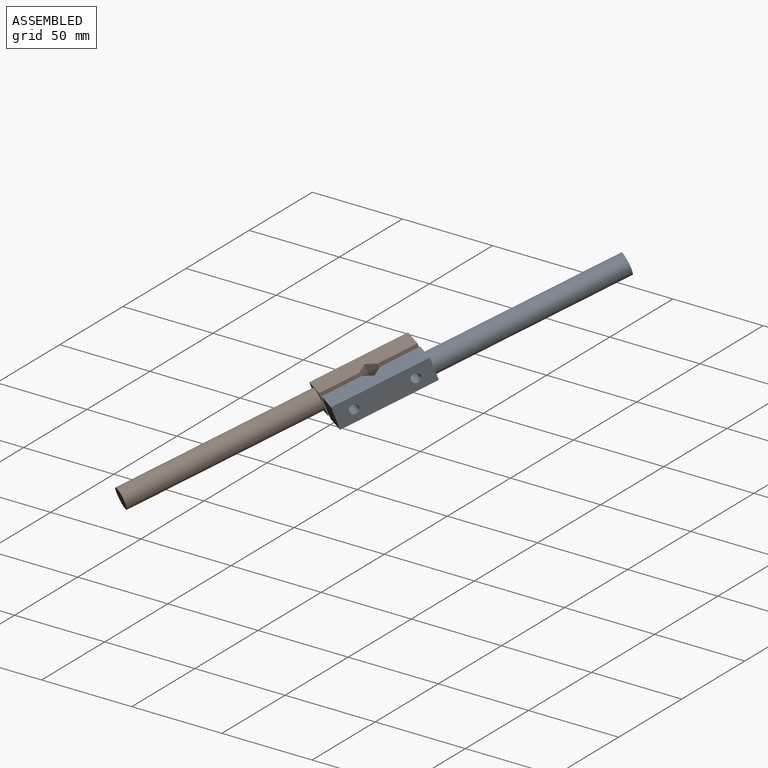
[diagram: assembled view]
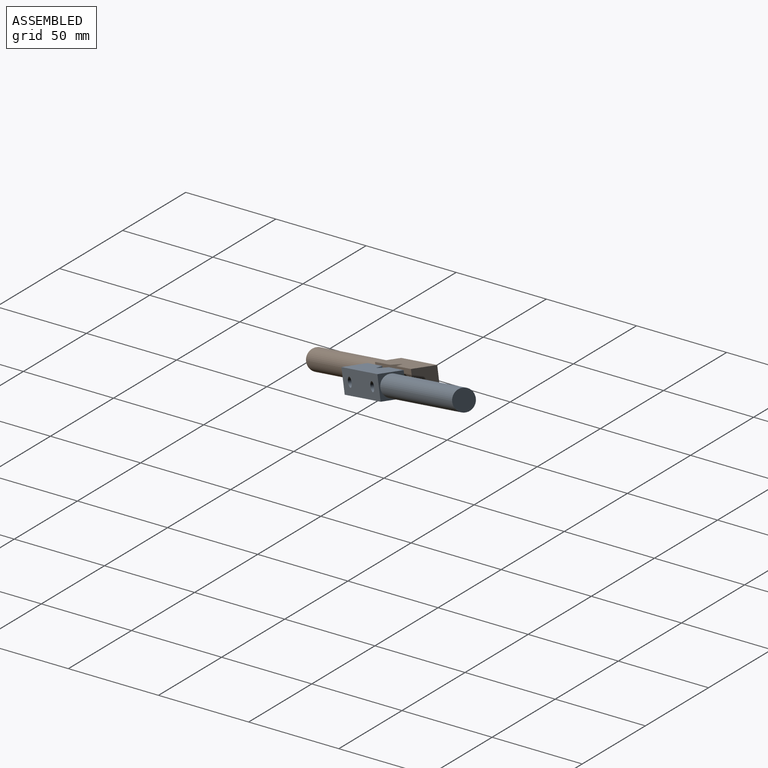
[diagram: assembled view, second angle]
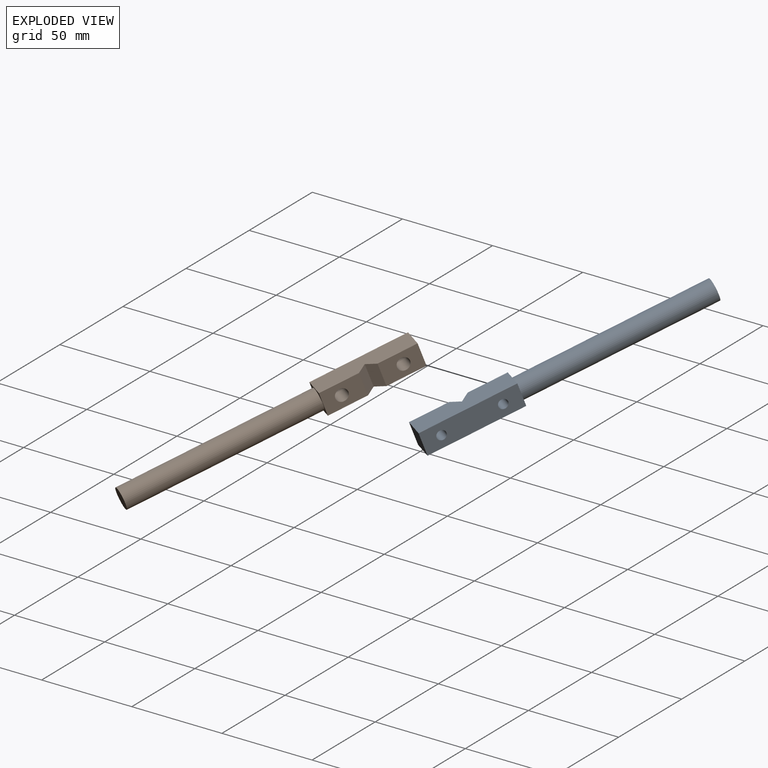
[diagram: exploded view]
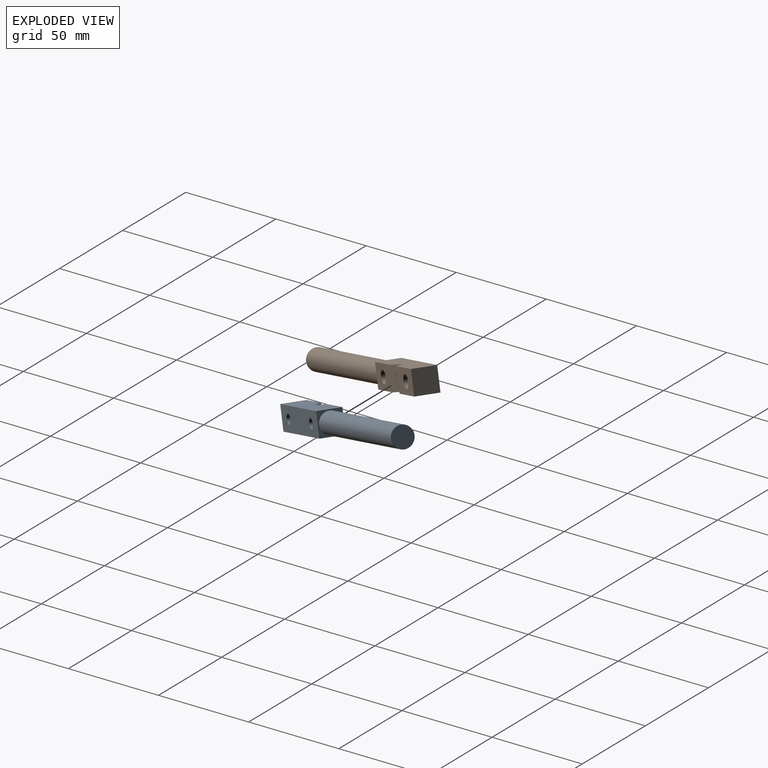
[diagram: exploded view, second angle]
ASSEMBLY  parts=2 mates=2
PART A: 13 faces, bbox 12.7x152.4x12.7 mm
  f0: plane 20.64x12.7mm, normal (1,0,0), area 241.6mm2, adj f2,f4,f6,f9,f12
  f1: plane 50.8x12.7mm, normal (-1,0,0), area 604.2mm2, adj f2,f4,f5,f6,f11,f12
  f2: plane 50.8x12.7mm, normal (0,0,-1), area 622.5mm2, adj f0,f1,f3,f5,f6,f9,f10
  f3: plane 20.64x12.7mm, normal (1,0,0), area 241.6mm2, adj f2,f4,f5,f10,f11
  f4: plane 50.8x12.7mm, normal (0,0,1), area 622.5mm2, adj f0,f1,f3,f5,f6,f9,f10
  f5: plane 12.7x12.7mm, normal (0,-1,0), area 58.7mm2, adj f1,f2,f3,f4,f7
  f6: plane 12.7x12.7mm, normal (0,1,0), area 161.3mm2, adj f0,f1,f2,f4
  f7: cylinder r=5.71mm len=101.6mm, axis (0,1,0), area 3648.3mm2, adj f5,f8
  f8: plane 11.43x11.43mm, normal (0,-1,0), area 102.6mm2, adj f7
  f9: plane 12.7x4.76mm, normal (0.71,-0.71,0), area 85.5mm2, adj f0,f2,f4,f10
  f10: plane 12.7x4.76mm, normal (0.71,0.71,0), area 85.5mm2, adj f2,f3,f4,f9
  f11: cylinder r=2.55mm len=12.7mm, axis (-1,0,0), area 203.7mm2, adj f1,f3
  f12: cylinder r=2.55mm len=12.7mm, axis (-1,0,0), area 203.7mm2, adj f0,f1
PART B: 13 faces, bbox 12.7x152.4x12.7 mm
  f0: plane 20.64x12.7mm, normal (1,0,0), area 226.2mm2, adj f2,f4,f6,f9,f12
  f1: plane 50.8x12.7mm, normal (-1,0,0), area 573.5mm2, adj f2,f4,f5,f6,f11,f12
  f2: plane 50.8x12.7mm, normal (0,0,-1), area 622.5mm2, adj f0,f1,f3,f5,f6,f9,f10
  f3: plane 20.64x12.7mm, normal (1,0,0), area 226.2mm2, adj f2,f4,f5,f10,f11
  f4: plane 50.8x12.7mm, normal (0,0,1), area 622.5mm2, adj f0,f1,f3,f5,f6,f9,f10
  f5: plane 12.7x12.7mm, normal (0,-1,0), area 58.7mm2, adj f1,f2,f3,f4,f7
  f6: plane 12.7x12.7mm, normal (0,1,0), area 161.3mm2, adj f0,f1,f2,f4
  f7: cylinder r=5.71mm len=101.6mm, axis (0,1,0), area 3648.3mm2, adj f5,f8
  f8: plane 11.43x11.43mm, normal (0,-1,0), area 102.6mm2, adj f7
  f9: plane 12.7x4.76mm, normal (0.71,-0.71,0), area 85.5mm2, adj f0,f2,f4,f10
  f10: plane 12.7x4.76mm, normal (0.71,0.71,0), area 85.5mm2, adj f2,f3,f4,f9
  f11: cylinder r=3.38mm len=12.7mm, axis (1,0,0), area 269.6mm2, adj f1,f3
  f12: cylinder r=3.38mm len=12.7mm, axis (1,0,0), area 269.6mm2, adj f0,f1
PLACE A rot(axis=(-0.05,-0.17,0.98),145.5deg) t=(-2.59,-67.2,-63.95)mm fixed
PLACE B rot(axis=(0.48,-0.15,-0.86),40.2deg) t=(11.5,-18.79,-46.57)mm
MATE slider B.f11 <-> A.f12  axis (0.82,-0.57,0) through (-5.55,-54.21,-60.69)mm
MATE slider A.f11 <-> B.f12  axis (-0.82,0.57,0) through (14.45,-31.79,-49.83)mm
